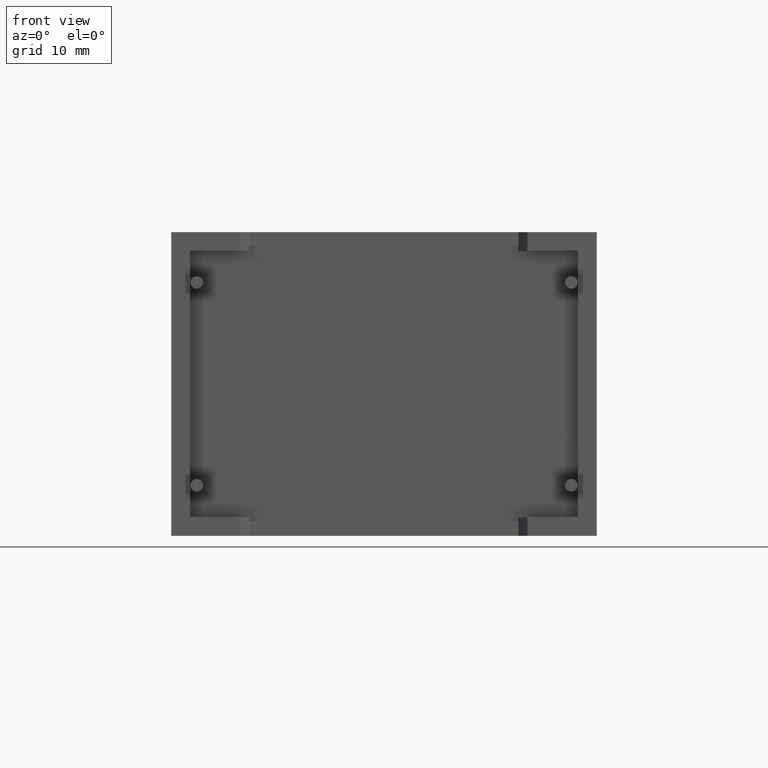
[diagram: clean part render]
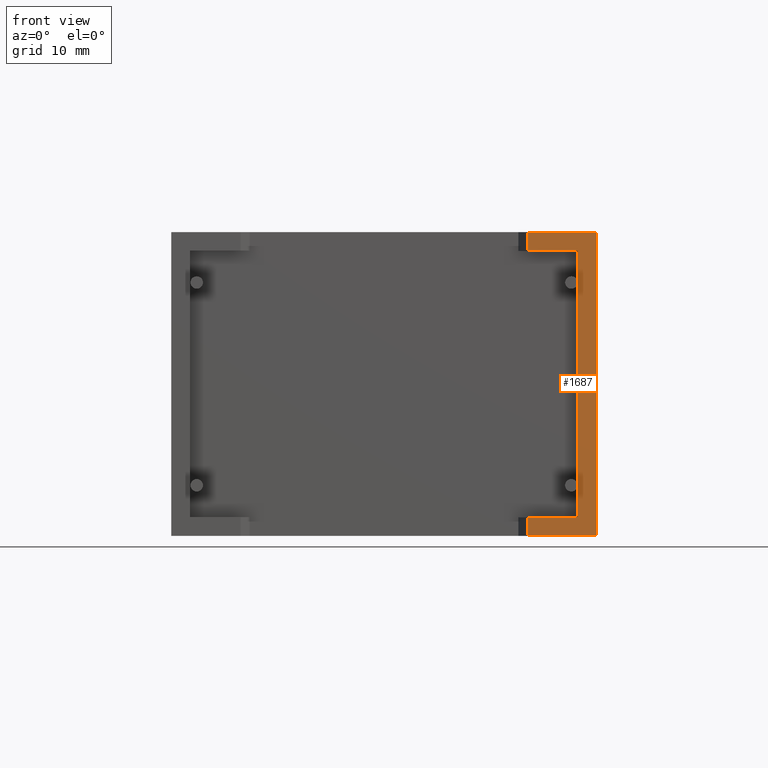
[diagram: same view with one face highlighted and labeled with its STEP entity id]
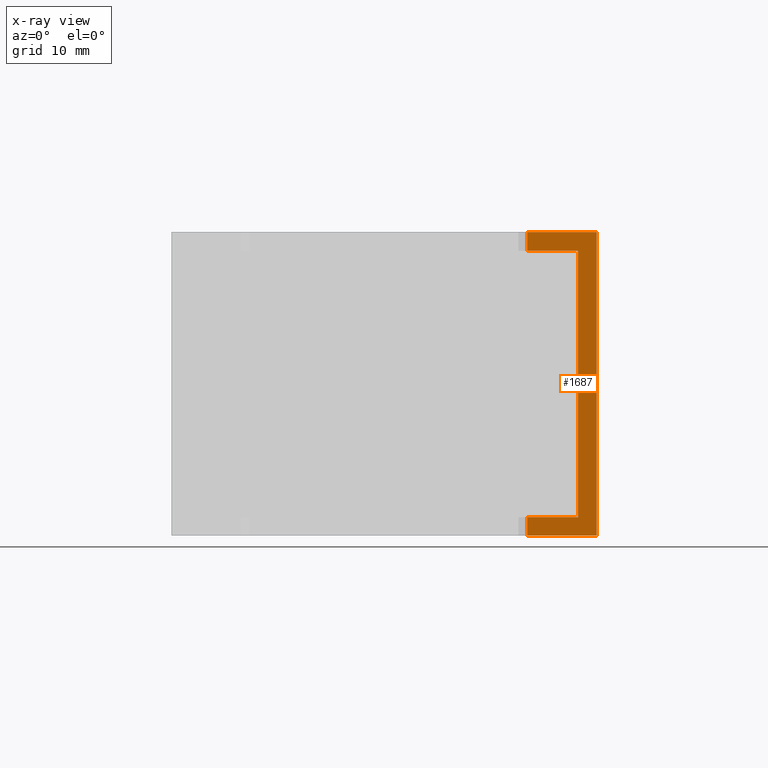
[diagram: x-ray of the same camera — body ghosted, the highlighted face saturated]
A machine part, front view. The second image highlights one B-rep face of the part: STEP entity #1687.
The next image is the same camera in x-ray: the body ghosted, the highlighted face saturated — about 0% of this face is hidden behind the body in this view.
In plain terms, the highlighted planar face has unit normal (0, 1, 0).
Its self-contained STEP definition (entity closure, byte-faithful):
#97 = EDGE_CURVE ( 'NONE', #513, #959, #2448, .T. ) ;
#112 = ORIENTED_EDGE ( 'NONE', *, *, #1005, .F. ) ;
#115 = VECTOR ( 'NONE', #211, 1000.000000000000000 ) ;
#116 = CARTESIAN_POINT ( 'NONE',  ( 35.64999999999999900, 1.702259050814820900E-015, 30.39999999999999900 ) ) ;
#137 = DIRECTION ( 'NONE',  ( 0.0000000000000000000, -0.0000000000000000000, 1.000000000000000000 ) ) ;
#181 = CARTESIAN_POINT ( 'NONE',  ( 35.64999999999999900, 1.702259050814820900E-015, 0.0000000000000000000 ) ) ;
#203 = ORIENTED_EDGE ( 'NONE', *, *, #2344, .F. ) ;
#211 = DIRECTION ( 'NONE',  ( 0.0000000000000000000, 0.0000000000000000000, 1.000000000000000000 ) ) ;
#324 = DIRECTION ( 'NONE',  ( 1.000000000000000000, 0.0000000000000000000, 0.0000000000000000000 ) ) ;
#368 = CARTESIAN_POINT ( 'NONE',  ( 40.73131199999999600, 0.0000000000000000000, 1.868687999999999900 ) ) ;
#415 = CARTESIAN_POINT ( 'NONE',  ( 42.60000000000000100, 0.0000000000000000000, 30.39999999999999900 ) ) ;
#452 = DIRECTION ( 'NONE',  ( 1.000000000000000000, 0.0000000000000000000, 0.0000000000000000000 ) ) ;
#457 = CARTESIAN_POINT ( 'NONE',  ( 40.73131199999999600, 0.0000000000000000000, 1.868687999999999900 ) ) ;
#495 = LINE ( 'NONE', #457, #115 ) ;
#504 = LINE ( 'NONE', #181, #808 ) ;
#513 = VERTEX_POINT ( 'NONE', #2766 ) ;
#540 = VECTOR ( 'NONE', #677, 1000.000000000000000 ) ;
#646 = VERTEX_POINT ( 'NONE', #2297 ) ;
#677 = DIRECTION ( 'NONE',  ( -0.0000000000000000000, -0.0000000000000000000, -1.000000000000000000 ) ) ;
#687 = EDGE_CURVE ( 'NONE', #646, #2106, #2515, .T. ) ;
#734 = FACE_OUTER_BOUND ( 'NONE', #2044, .T. ) ;
#802 = EDGE_CURVE ( 'NONE', #2106, #1560, #504, .T. ) ;
#808 = VECTOR ( 'NONE', #2368, 1000.000000000000000 ) ;
#959 = VERTEX_POINT ( 'NONE', #2653 ) ;
#1005 = EDGE_CURVE ( 'NONE', #513, #2083, #2210, .T. ) ;
#1012 = VERTEX_POINT ( 'NONE', #1875 ) ;
#1101 = ORIENTED_EDGE ( 'NONE', *, *, #802, .F. ) ;
#1255 = VECTOR ( 'NONE', #1629, 1000.000000000000000 ) ;
#1300 = ORIENTED_EDGE ( 'NONE', *, *, #2646, .F. ) ;
#1417 = EDGE_CURVE ( 'NONE', #2083, #1645, #2974, .T. ) ;
#1511 = ORIENTED_EDGE ( 'NONE', *, *, #687, .F. ) ;
#1560 = VERTEX_POINT ( 'NONE', #116 ) ;
#1594 = LINE ( 'NONE', #2255, #2500 ) ;
#1629 = DIRECTION ( 'NONE',  ( -1.000000000000000000, 0.0000000000000000000, 0.0000000000000000000 ) ) ;
#1645 = VERTEX_POINT ( 'NONE', #368 ) ;
#1687 = ADVANCED_FACE ( 'NONE', ( #734 ), #2821, .F. ) ;
#1723 = VECTOR ( 'NONE', #452, 1000.000000000000000 ) ;
#1802 = VECTOR ( 'NONE', #2323, 1000.000000000000000 ) ;
#1830 = CARTESIAN_POINT ( 'NONE',  ( 0.0000000000000000000, 0.0000000000000000000, 0.0000000000000000000 ) ) ;
#1875 = CARTESIAN_POINT ( 'NONE',  ( 42.60000000000000100, 0.0000000000000000000, 30.39999999999999900 ) ) ;
#1885 = ORIENTED_EDGE ( 'NONE', *, *, #97, .T. ) ;
#1889 = DIRECTION ( 'NONE',  ( 0.0000000000000000000, 1.000000000000000000, 0.0000000000000000000 ) ) ;
#1932 = AXIS2_PLACEMENT_3D ( 'NONE', #2120, #1889, #137 ) ;
#1957 = VECTOR ( 'NONE', #2454, 1000.000000000000000 ) ;
#2036 = CARTESIAN_POINT ( 'NONE',  ( 35.64999999999999900, 1.702259050814820900E-015, 28.53131199999999300 ) ) ;
#2044 = EDGE_LOOP ( 'NONE', ( #112, #1885, #2059, #1300, #1101, #1511, #203, #2534 ) ) ;
#2059 = ORIENTED_EDGE ( 'NONE', *, *, #2229, .F. ) ;
#2083 = VERTEX_POINT ( 'NONE', #2981 ) ;
#2106 = VERTEX_POINT ( 'NONE', #2036 ) ;
#2120 = CARTESIAN_POINT ( 'NONE',  ( 0.0000000000000000000, 0.0000000000000000000, 30.39999999999999900 ) ) ;
#2210 = LINE ( 'NONE', #2426, #1957 ) ;
#2229 = EDGE_CURVE ( 'NONE', #1012, #959, #2434, .T. ) ;
#2255 = CARTESIAN_POINT ( 'NONE',  ( 0.0000000000000000000, 0.0000000000000000000, 30.39999999999999900 ) ) ;
#2297 = CARTESIAN_POINT ( 'NONE',  ( 40.73131199999999600, 0.0000000000000000000, 28.53131200000000000 ) ) ;
#2323 = DIRECTION ( 'NONE',  ( 1.000000000000000000, 0.0000000000000000000, 0.0000000000000000000 ) ) ;
#2344 = EDGE_CURVE ( 'NONE', #1645, #646, #495, .T. ) ;
#2368 = DIRECTION ( 'NONE',  ( -0.0000000000000000000, -0.0000000000000000000, 1.000000000000000000 ) ) ;
#2426 = CARTESIAN_POINT ( 'NONE',  ( 35.64999999999999900, 1.702259050814820900E-015, 0.0000000000000000000 ) ) ;
#2434 = LINE ( 'NONE', #415, #540 ) ;
#2448 = LINE ( 'NONE', #1830, #1802 ) ;
#2454 = DIRECTION ( 'NONE',  ( -0.0000000000000000000, -0.0000000000000000000, 1.000000000000000000 ) ) ;
#2500 = VECTOR ( 'NONE', #324, 1000.000000000000000 ) ;
#2515 = LINE ( 'NONE', #2813, #1255 ) ;
#2534 = ORIENTED_EDGE ( 'NONE', *, *, #1417, .F. ) ;
#2646 = EDGE_CURVE ( 'NONE', #1560, #1012, #1594, .T. ) ;
#2653 = CARTESIAN_POINT ( 'NONE',  ( 42.60000000000000100, 0.0000000000000000000, 0.0000000000000000000 ) ) ;
#2766 = CARTESIAN_POINT ( 'NONE',  ( 35.64999999999999900, 1.702259050814820900E-015, 0.0000000000000000000 ) ) ;
#2813 = CARTESIAN_POINT ( 'NONE',  ( 40.73131199999999600, 0.0000000000000000000, 28.53131200000000000 ) ) ;
#2821 = PLANE ( 'NONE',  #1932 ) ;
#2974 = LINE ( 'NONE', #3106, #1723 ) ;
#2981 = CARTESIAN_POINT ( 'NONE',  ( 35.64999999999999900, 1.702259050814820900E-015, 1.868687999999999500 ) ) ;
#3106 = CARTESIAN_POINT ( 'NONE',  ( 1.868687999999999700, 0.0000000000000000000, 1.868687999999999900 ) ) ;